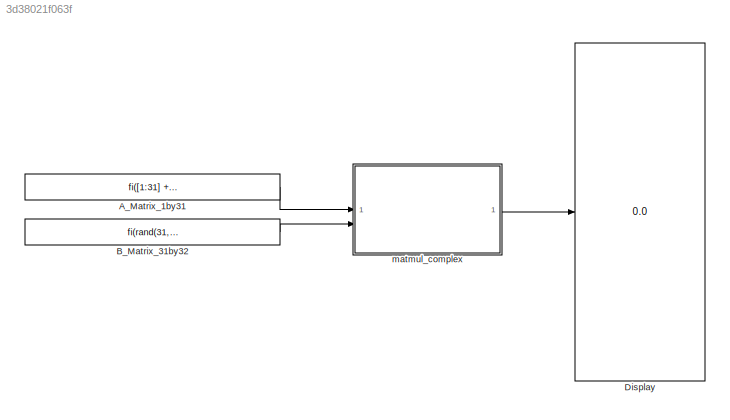
MODEL slx_3d38021f063f
KIND model
CONFIG AbsTol = auto
CONFIG EnableMultiTasking = off
CONFIG FixedStep = 1e-8
CONFIG MaxStep = auto
CONFIG MinStep = auto
CONFIG RelTol = 1e-3
CONFIG SampleTimeConstraint = Unconstrained
CONFIG SolverName = FixedStepDiscrete
CONFIG StartTime = 0.0
CONFIG StopTime = 0.000001
BLOCK [Constant] A_Matrix_1by31
  NameLocation = top
  OutDataTypeStr = Inherit: Inherit via back propagation
  Value = fi([1:31] + 1i*[1:31], 1, 16, 10)
  VectorParams1D = off
BLOCK [Constant] B_Matrix_31by32
  OutDataTypeStr = Inherit: Inherit via back propagation
  Value = fi(rand(31,32) + 1i*rand(31,32), 1, 16, 10)
BLOCK [Display] Display
  Decimation = 1
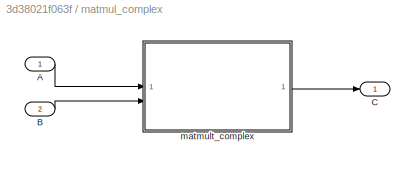
BLOCK [SubSystem] matmul_complex
BLOCK [Inport] matmul_complex/A
  OutDataTypeStr = fixdt(1,16,10)
BLOCK [Inport] matmul_complex/B
  OutDataTypeStr = fixdt(1,16,10)
  Port = 2
BLOCK [Outport] matmul_complex/C
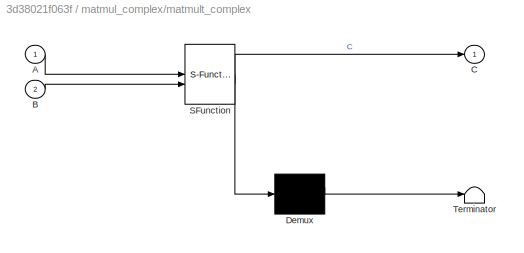
BLOCK [SubSystem] matmul_complex/matmult_complex
  ErrorFcn = Stateflow.Translate.translate
  PermitHierarchicalResolution = ExplicitOnly
  SFBlockType = MATLAB Function
  TreatAsAtomicUnit = on
BLOCK [Demux] matmul_complex/matmult_complex/ Demux 
  Outputs = 1
BLOCK [S-Function] matmul_complex/matmult_complex/ SFunction 
  EnableBusSupport = on
  FunctionName = sf_sfun
  PortCounts = [2 2]
  SFcnIsStateOwnerBlock = off
  SFunctionDeploymentMode = off
  Tag = Stateflow S-Function 1
BLOCK [Terminator] matmul_complex/matmult_complex/ Terminator 
BLOCK [Inport] matmul_complex/matmult_complex/A
BLOCK [Inport] matmul_complex/matmult_complex/B
  Port = 2
BLOCK [Outport] matmul_complex/matmult_complex/C
  VectorParamsAs1DForOutWhenUnconnected = off
LINE A_Matrix_1by31:1 -> matmul_complex:1
LINE B_Matrix_31by32:1 -> matmul_complex:2
LINE matmul_complex/A:1 -> matmul_complex/matmult_complex:1
LINE matmul_complex/B:1 -> matmul_complex/matmult_complex:2
LINE matmul_complex/matmult_complex:1 -> matmul_complex/C:1
LINE matmul_complex:1 -> Display:1
CHART matmul_complex/matmult_complex states=1 transitions=1
  STATE_LABEL 'eML_blk_kernel()'
  STATE_LABEL "SCRIPT:\nfunction C = matmul_complex(A, B)\n%#codegen\n% HDL-friendly matrix multiplication\n% A: 1x31, B: 31x32 -> C: 1x32\n% Complex fixed-point (sfix16_En10)\n\n% Define types\nT_elem = numerictype(1,16,10);   % signed, 16-bit, 10 frac\nT_acc  = numerictype(1,32,20);   % accumulator wider\nF = fimath('RoundingMethod','Nearest','OverflowAction','Saturate', ...\n           'ProductMode','SpecifyPrecision','...<+546ch>"
CHART  states=0 transitions=0
